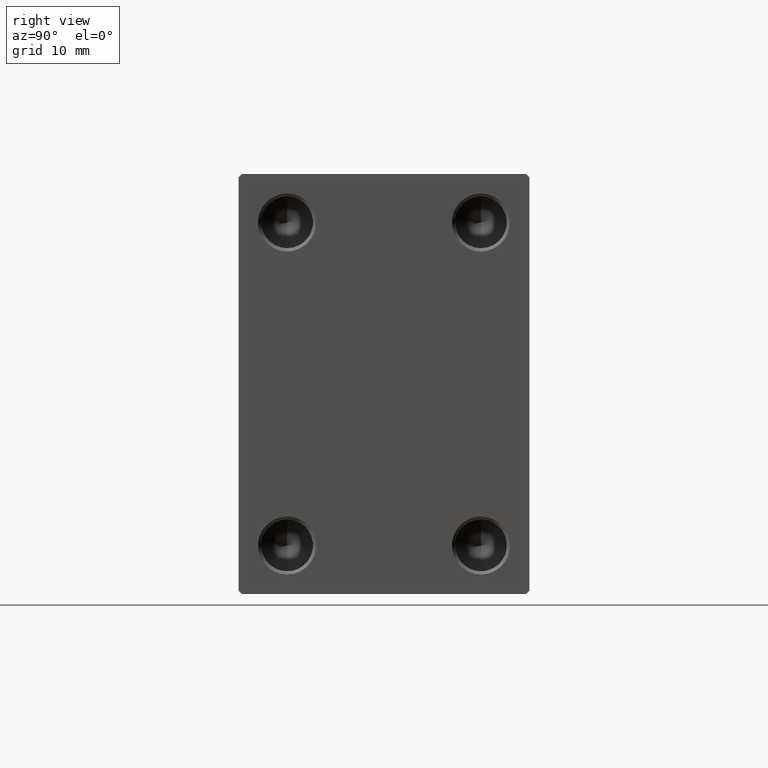
[diagram: clean part render]
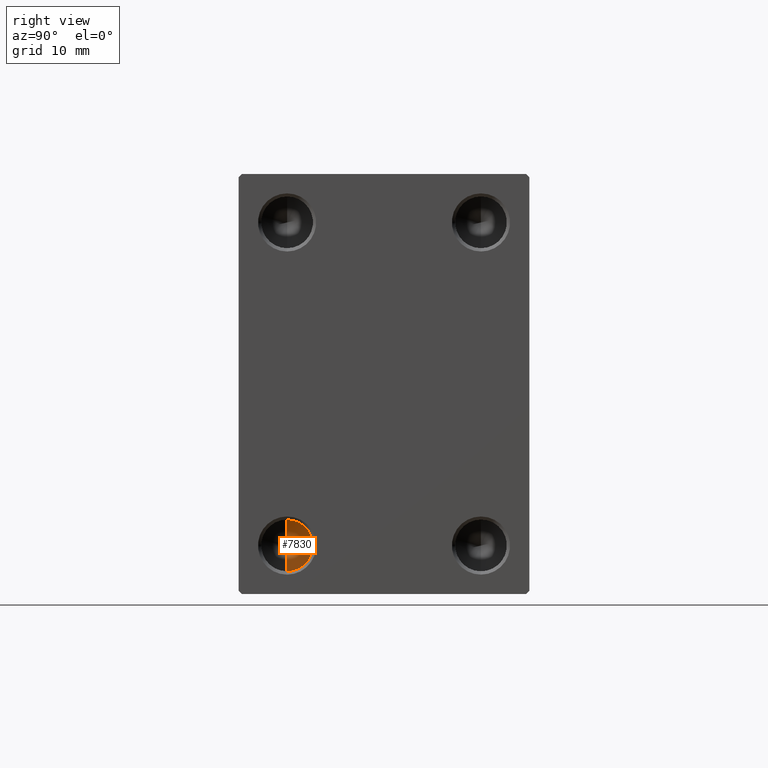
[diagram: same view with one face highlighted and labeled with its STEP entity id]
A machine part, right view. The second image highlights one B-rep face of the part: STEP entity #7830.
In plain terms, the highlighted conical surface has half-angle 59 deg.
Its self-contained STEP definition (entity closure, byte-faithful):
#292 = ORIENTED_EDGE ( 'NONE', *, *, #17593, .F. ) ;
#2331 = DIRECTION ( 'NONE',  ( 0.5150380749100547106, -1.049727191138618326E-16, -0.8571673007021120005 ) ) ;
#4945 = VERTEX_POINT ( 'NONE', #27809 ) ;
#5049 = DIRECTION ( 'NONE',  ( 0.5150380749100547106, 0.000000000000000000, 0.8571673007021120005 ) ) ;
#7045 = CONICAL_SURFACE ( 'NONE', #15577, 3.999999999999996447, 1.029744258676653867 ) ;
#7830 = ADVANCED_FACE ( 'NONE', ( #25769 ), #7045, .F. ) ;
#9032 = DIRECTION ( 'NONE',  ( 1.000000000000000000, -0.000000000000000000, -0.000000000000000000 ) ) ;
#15308 = DIRECTION ( 'NONE',  ( 0.000000000000000000, 0.000000000000000000, 1.000000000000000000 ) ) ;
#15577 = AXIS2_PLACEMENT_3D ( 'NONE', #39365, #9032, #35801 ) ;
#15679 = EDGE_CURVE ( 'NONE', #4945, #43462, #42927, .T. ) ;
#17593 = EDGE_CURVE ( 'NONE', #18515, #43462, #31722, .T. ) ;
#18237 = VECTOR ( 'NONE', #5049, 1000.000000000000000 ) ;
#18515 = VERTEX_POINT ( 'NONE', #36352 ) ;
#19591 = EDGE_CURVE ( 'NONE', #4945, #18515, #22000, .T. ) ;
#22000 = LINE ( 'NONE', #35596, #18237 ) ;
#25129 = CARTESIAN_POINT ( 'NONE',  ( 55.00000000000000711, -15.00000000000000000, -25.00000000000000000 ) ) ;
#25769 = FACE_OUTER_BOUND ( 'NONE', #39880, .T. ) ;
#27809 = CARTESIAN_POINT ( 'NONE',  ( 52.59655752388976424, -15.00000000000000533, -25.00000000000000000 ) ) ;
#28163 = AXIS2_PLACEMENT_3D ( 'NONE', #25129, #35821, #15308 ) ;
#31722 = CIRCLE ( 'NONE', #28163, 3.999999999999996447 ) ;
#35596 = CARTESIAN_POINT ( 'NONE',  ( 55.00000000000000711, -15.00000000000000000, -21.00000000000000355 ) ) ;
#35796 = CARTESIAN_POINT ( 'NONE',  ( 55.00000000000000711, -15.00000000000000000, -28.99999999999999645 ) ) ;
#35801 = DIRECTION ( 'NONE',  ( 0.000000000000000000, 0.000000000000000000, 1.000000000000000000 ) ) ;
#35821 = DIRECTION ( 'NONE',  ( -1.000000000000000000, 0.000000000000000000, 0.000000000000000000 ) ) ;
#36352 = CARTESIAN_POINT ( 'NONE',  ( 55.00000000000000711, -15.00000000000000000, -21.00000000000000355 ) ) ;
#39346 = ORIENTED_EDGE ( 'NONE', *, *, #15679, .T. ) ;
#39365 = CARTESIAN_POINT ( 'NONE',  ( 55.00000000000000711, -15.00000000000000000, -25.00000000000000000 ) ) ;
#39587 = CARTESIAN_POINT ( 'NONE',  ( 55.00000000000000711, -15.00000000000000000, -28.99999999999999645 ) ) ;
#39880 = EDGE_LOOP ( 'NONE', ( #43985, #39346, #292 ) ) ;
#42363 = VECTOR ( 'NONE', #2331, 1000.000000000000000 ) ;
#42927 = LINE ( 'NONE', #39587, #42363 ) ;
#43462 = VERTEX_POINT ( 'NONE', #35796 ) ;
#43985 = ORIENTED_EDGE ( 'NONE', *, *, #19591, .F. ) ;